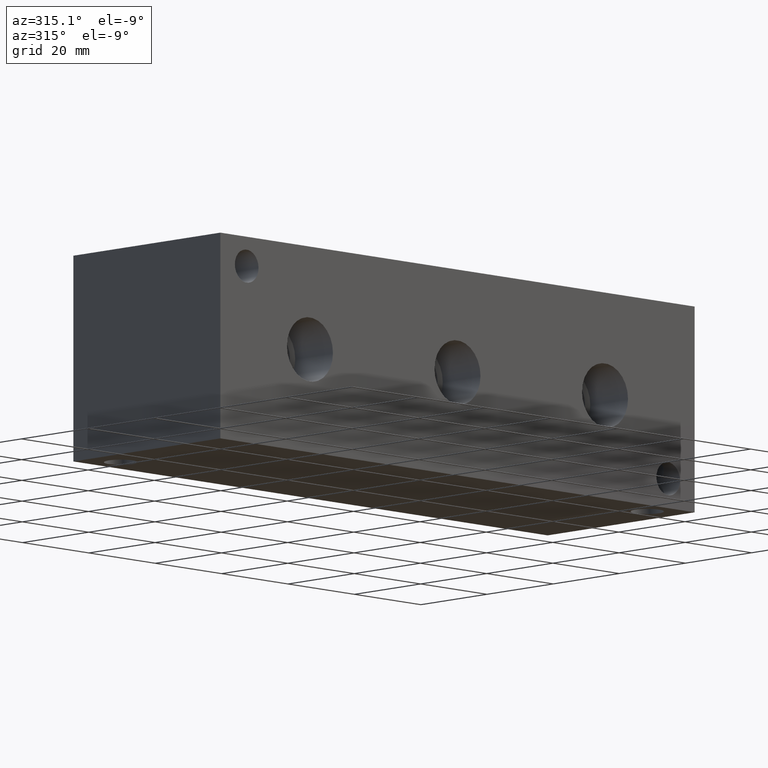
[diagram: clean part render]
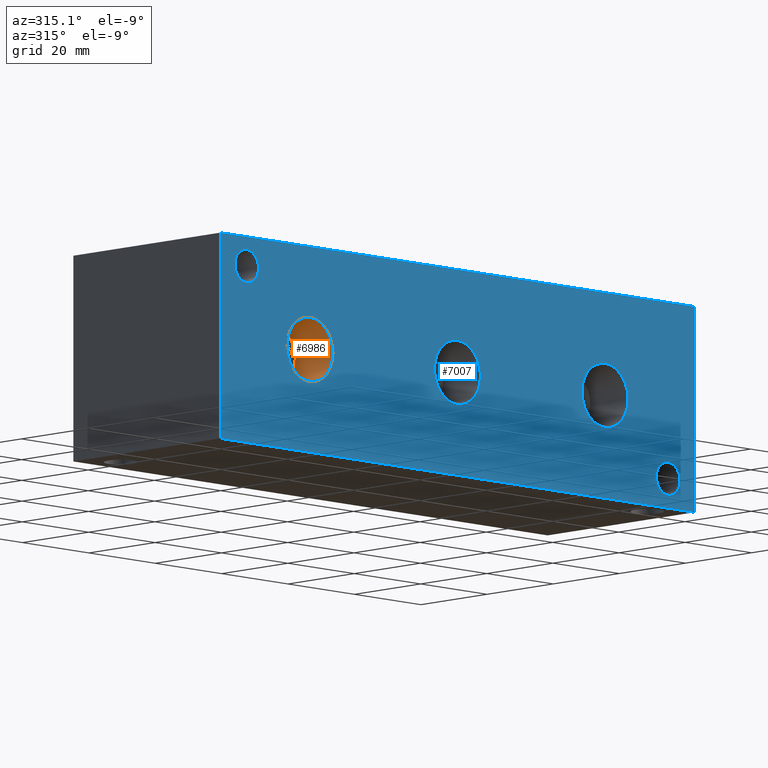
[diagram: same view with the hole feature highlighted: cylindrical wall and planar end face, labeled with their STEP entity ids]
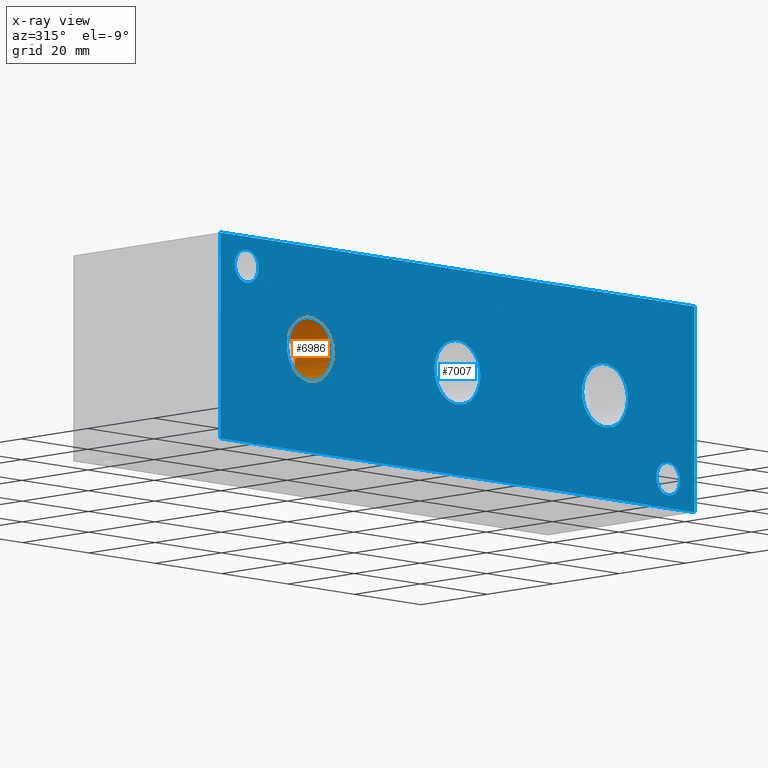
[diagram: x-ray of the same camera — body ghosted, the hole faces saturated]
A machine part, auxiliary view. The highlighted faces form one hole feature of diameter 13.8684 mm: the cylindrical wall (entity #6986, orange) and its adjacent planar end face (entity #7007, blue) — they share a circular edge in the B-rep.
The next image is the same camera in x-ray (body ghosted, the hole faces saturated) — the bore reads through the body.
Wall:
#38=CYLINDRICAL_SURFACE('',#7285,6.9342);
#75=CIRCLE('',#7282,6.9342);
#76=CIRCLE('',#7283,6.9342);
#78=CIRCLE('',#7286,6.9342);
#79=CIRCLE('',#7287,6.9342);
#702=FACE_OUTER_BOUND('',#1092,.T.);
#1092=EDGE_LOOP('',(#6122,#6123,#6124,#6125,#6126,#6127));
#1792=LINE('',#11894,#2477);
#2477=VECTOR('',#8526,6.9342);
#3324=VERTEX_POINT('',#11883);
#3325=VERTEX_POINT('',#11884);
#3327=VERTEX_POINT('',#11890);
#3328=VERTEX_POINT('',#11891);
#4271=EDGE_CURVE('',#3324,#3325,#75,.T.);
#4272=EDGE_CURVE('',#3325,#3324,#76,.T.);
#4274=EDGE_CURVE('',#3327,#3328,#78,.T.);
#4275=EDGE_CURVE('',#3328,#3327,#79,.T.);
#4276=EDGE_CURVE('',#3328,#3325,#1792,.T.);
#6122=ORIENTED_EDGE('',*,*,#4274,.F.);
#6123=ORIENTED_EDGE('',*,*,#4275,.F.);
#6124=ORIENTED_EDGE('',*,*,#4276,.T.);
#6125=ORIENTED_EDGE('',*,*,#4271,.F.);
#6126=ORIENTED_EDGE('',*,*,#4272,.F.);
#6127=ORIENTED_EDGE('',*,*,#4276,.F.);
#6986=ADVANCED_FACE('',(#702),#38,.F.);
#7282=AXIS2_PLACEMENT_3D('',#11885,#8514,#8515);
#7283=AXIS2_PLACEMENT_3D('',#11886,#8516,#8517);
#7285=AXIS2_PLACEMENT_3D('',#11889,#8520,#8521);
#7286=AXIS2_PLACEMENT_3D('',#11892,#8522,#8523);
#7287=AXIS2_PLACEMENT_3D('',#11893,#8524,#8525);
#8514=DIRECTION('center_axis',(0.,-1.,0.));
#8515=DIRECTION('ref_axis',(1.,0.,0.));
#8516=DIRECTION('center_axis',(0.,-1.,0.));
#8517=DIRECTION('ref_axis',(1.,0.,0.));
#8520=DIRECTION('center_axis',(0.,-1.,0.));
#8521=DIRECTION('ref_axis',(1.,0.,0.));
#8522=DIRECTION('center_axis',(0.,1.,0.));
#8523=DIRECTION('ref_axis',(1.,0.,0.));
#8524=DIRECTION('center_axis',(0.,1.,0.));
#8525=DIRECTION('ref_axis',(1.,0.,0.));
#8526=DIRECTION('',(0.,1.,0.));
#11883=CARTESIAN_POINT('',(33.909,11.4046,22.225));
#11884=CARTESIAN_POINT('',(20.0406,11.4046,22.225));
#11885=CARTESIAN_POINT('Origin',(26.9748,11.4046,22.225));
#11886=CARTESIAN_POINT('Origin',(26.9748,11.4046,22.225));
#11889=CARTESIAN_POINT('Origin',(26.9748,5.7023,22.225));
#11890=CARTESIAN_POINT('',(33.909,0.,22.225));
#11891=CARTESIAN_POINT('',(20.0406,0.,22.225));
#11892=CARTESIAN_POINT('Origin',(26.9748,0.,22.225));
#11893=CARTESIAN_POINT('Origin',(26.9748,0.,22.225));
#11894=CARTESIAN_POINT('',(20.0406,5.7023,22.225));
End face:
#58=CIRCLE('',#7244,3.5687);
#59=CIRCLE('',#7245,3.5687);
#61=CIRCLE('',#7253,3.5687);
#62=CIRCLE('',#7254,3.5687);
#71=CIRCLE('',#7275,6.9342);
#72=CIRCLE('',#7276,6.9342);
#78=CIRCLE('',#7286,6.9342);
#79=CIRCLE('',#7287,6.9342);
#85=CIRCLE('',#7297,6.9342);
#86=CIRCLE('',#7298,6.9342);
#144=FACE_BOUND('',#1120,.T.);
#145=FACE_BOUND('',#1121,.T.);
#146=FACE_BOUND('',#1122,.T.);
#147=FACE_BOUND('',#1123,.T.);
#148=FACE_BOUND('',#1124,.T.);
#369=PLANE('',#7330);
#723=FACE_OUTER_BOUND('',#1119,.T.);
#1119=EDGE_LOOP('',(#6219,#6220,#6221,#6222));
#1120=EDGE_LOOP('',(#6223,#6224));
#1121=EDGE_LOOP('',(#6225,#6226));
#1122=EDGE_LOOP('',(#6227,#6228));
#1123=EDGE_LOOP('',(#6229,#6230));
#1124=EDGE_LOOP('',(#6231,#6232));
#1399=LINE('',#10875,#2084);
#1807=LINE('',#11977,#2492);
#1812=LINE('',#11986,#2497);
#1813=LINE('',#11988,#2498);
#2084=VECTOR('',#7741,10.);
#2492=VECTOR('',#8621,10.);
#2497=VECTOR('',#8630,10.);
#2498=VECTOR('',#8633,10.);
#3025=VERTEX_POINT('',#10873);
#3026=VERTEX_POINT('',#10874);
#3301=VERTEX_POINT('',#11810);
#3302=VERTEX_POINT('',#11811);
#3306=VERTEX_POINT('',#11826);
#3307=VERTEX_POINT('',#11827);
#3319=VERTEX_POINT('',#11868);
#3320=VERTEX_POINT('',#11869);
#3327=VERTEX_POINT('',#11890);
#3328=VERTEX_POINT('',#11891);
#3335=VERTEX_POINT('',#11912);
#3336=VERTEX_POINT('',#11913);
#3356=VERTEX_POINT('',#11975);
#3358=VERTEX_POINT('',#11984);
#3827=EDGE_CURVE('',#3025,#3026,#1399,.T.);
#4234=EDGE_CURVE('',#3301,#3302,#58,.T.);
#4235=EDGE_CURVE('',#3302,#3301,#59,.T.);
#4243=EDGE_CURVE('',#3306,#3307,#61,.T.);
#4244=EDGE_CURVE('',#3307,#3306,#62,.T.);
#4264=EDGE_CURVE('',#3319,#3320,#71,.T.);
#4265=EDGE_CURVE('',#3320,#3319,#72,.T.);
#4274=EDGE_CURVE('',#3327,#3328,#78,.T.);
#4275=EDGE_CURVE('',#3328,#3327,#79,.T.);
#4284=EDGE_CURVE('',#3335,#3336,#85,.T.);
#4285=EDGE_CURVE('',#3336,#3335,#86,.T.);
#4313=EDGE_CURVE('',#3356,#3025,#1807,.T.);
#4318=EDGE_CURVE('',#3358,#3026,#1812,.T.);
#4319=EDGE_CURVE('',#3356,#3358,#1813,.T.);
#6219=ORIENTED_EDGE('',*,*,#4319,.T.);
#6220=ORIENTED_EDGE('',*,*,#4318,.T.);
#6221=ORIENTED_EDGE('',*,*,#3827,.F.);
#6222=ORIENTED_EDGE('',*,*,#4313,.F.);
#6223=ORIENTED_EDGE('',*,*,#4234,.T.);
#6224=ORIENTED_EDGE('',*,*,#4235,.T.);
#6225=ORIENTED_EDGE('',*,*,#4243,.T.);
#6226=ORIENTED_EDGE('',*,*,#4244,.T.);
#6227=ORIENTED_EDGE('',*,*,#4264,.T.);
#6228=ORIENTED_EDGE('',*,*,#4265,.T.);
#6229=ORIENTED_EDGE('',*,*,#4274,.T.);
#6230=ORIENTED_EDGE('',*,*,#4275,.T.);
#6231=ORIENTED_EDGE('',*,*,#4284,.T.);
#6232=ORIENTED_EDGE('',*,*,#4285,.T.);
#7007=ADVANCED_FACE('',(#723,#144,#145,#146,#147,#148),#369,.T.);
#7244=AXIS2_PLACEMENT_3D('',#11812,#8426,#8427);
#7245=AXIS2_PLACEMENT_3D('',#11813,#8428,#8429);
#7253=AXIS2_PLACEMENT_3D('',#11828,#8446,#8447);
#7254=AXIS2_PLACEMENT_3D('',#11829,#8448,#8449);
#7275=AXIS2_PLACEMENT_3D('',#11870,#8497,#8498);
#7276=AXIS2_PLACEMENT_3D('',#11871,#8499,#8500);
#7286=AXIS2_PLACEMENT_3D('',#11892,#8522,#8523);
#7287=AXIS2_PLACEMENT_3D('',#11893,#8524,#8525);
#7297=AXIS2_PLACEMENT_3D('',#11914,#8547,#8548);
#7298=AXIS2_PLACEMENT_3D('',#11915,#8549,#8550);
#7330=AXIS2_PLACEMENT_3D('',#11987,#8631,#8632);
#7741=DIRECTION('',(1.,0.,0.));
#8426=DIRECTION('center_axis',(0.,1.,0.));
#8427=DIRECTION('ref_axis',(1.,0.,0.));
#8428=DIRECTION('center_axis',(0.,1.,0.));
#8429=DIRECTION('ref_axis',(1.,0.,0.));
#8446=DIRECTION('center_axis',(0.,1.,0.));
#8447=DIRECTION('ref_axis',(1.,0.,0.));
#8448=DIRECTION('center_axis',(0.,1.,0.));
#8449=DIRECTION('ref_axis',(1.,0.,0.));
#8497=DIRECTION('center_axis',(0.,1.,0.));
#8498=DIRECTION('ref_axis',(1.,0.,0.));
#8499=DIRECTION('center_axis',(0.,1.,0.));
#8500=DIRECTION('ref_axis',(1.,0.,0.));
#8522=DIRECTION('center_axis',(0.,1.,0.));
#8523=DIRECTION('ref_axis',(1.,0.,0.));
#8524=DIRECTION('center_axis',(0.,1.,0.));
#8525=DIRECTION('ref_axis',(1.,0.,0.));
#8547=DIRECTION('center_axis',(0.,1.,0.));
#8548=DIRECTION('ref_axis',(1.,0.,0.));
#8549=DIRECTION('center_axis',(0.,1.,0.));
#8550=DIRECTION('ref_axis',(1.,0.,0.));
#8621=DIRECTION('',(0.,0.,1.));
#8630=DIRECTION('',(0.,0.,1.));
#8631=DIRECTION('center_axis',(0.,-1.,0.));
#8632=DIRECTION('ref_axis',(1.,0.,0.));
#8633=DIRECTION('',(1.,0.,0.));
#10873=CARTESIAN_POINT('',(0.,0.,44.45));
#10874=CARTESIAN_POINT('',(142.875,0.,44.45));
#10875=CARTESIAN_POINT('',(0.,0.,44.45));
#11810=CARTESIAN_POINT('',(11.4935,0.,38.1));
#11811=CARTESIAN_POINT('',(4.3561,1.77635683940025E-14,38.1));
#11812=CARTESIAN_POINT('Origin',(7.9248,0.,38.1));
#11813=CARTESIAN_POINT('Origin',(7.9248,0.,38.1));
#11826=CARTESIAN_POINT('',(138.4935,0.,6.35));
#11827=CARTESIAN_POINT('',(131.3561,1.77635683940025E-14,6.35));
#11828=CARTESIAN_POINT('Origin',(134.9248,0.,6.35));
#11829=CARTESIAN_POINT('Origin',(134.9248,0.,6.35));
#11868=CARTESIAN_POINT('',(78.359,0.,22.225));
#11869=CARTESIAN_POINT('',(64.4906,0.,22.225));
#11870=CARTESIAN_POINT('Origin',(71.4248,0.,22.225));
#11871=CARTESIAN_POINT('Origin',(71.4248,0.,22.225));
#11890=CARTESIAN_POINT('',(33.909,0.,22.225));
#11891=CARTESIAN_POINT('',(20.0406,0.,22.225));
#11892=CARTESIAN_POINT('Origin',(26.9748,0.,22.225));
#11893=CARTESIAN_POINT('Origin',(26.9748,0.,22.225));
#11912=CARTESIAN_POINT('',(122.809,0.,22.225));
#11913=CARTESIAN_POINT('',(108.9406,0.,22.225));
#11914=CARTESIAN_POINT('Origin',(115.8748,0.,22.225));
#11915=CARTESIAN_POINT('Origin',(115.8748,0.,22.225));
#11975=CARTESIAN_POINT('',(0.,0.,0.));
#11977=CARTESIAN_POINT('',(0.,0.,0.));
#11984=CARTESIAN_POINT('',(142.875,0.,0.));
#11986=CARTESIAN_POINT('',(142.875,0.,0.));
#11987=CARTESIAN_POINT('Origin',(0.,0.,0.));
#11988=CARTESIAN_POINT('',(0.,0.,0.));